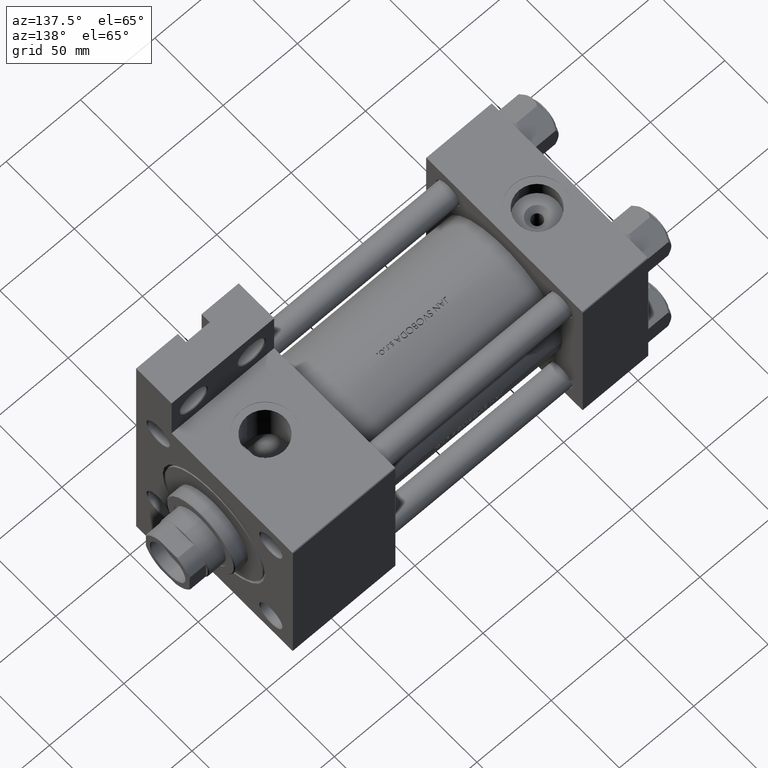
[diagram: clean part render]
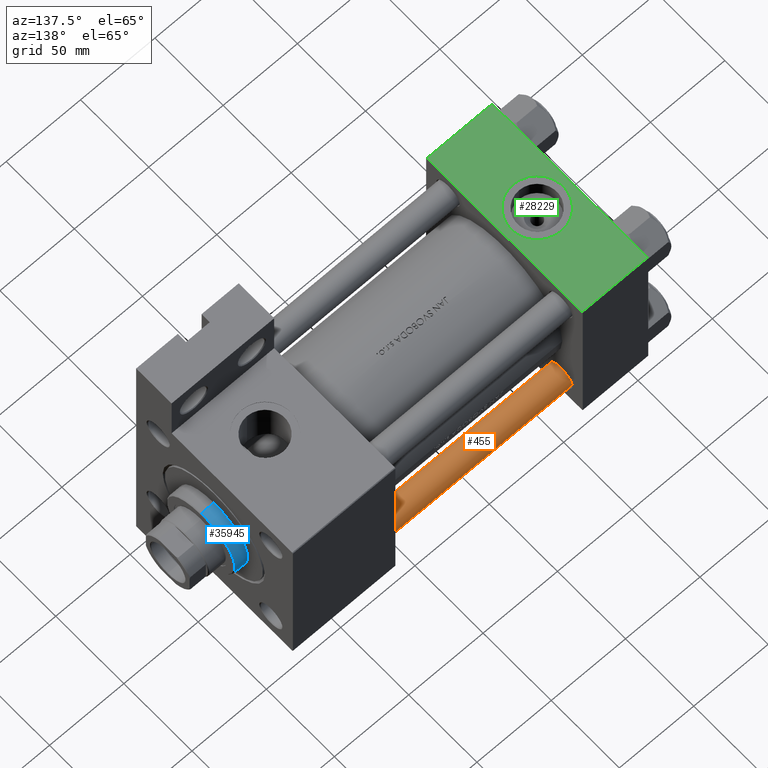
[diagram: same view with three faces highlighted in distinct colors, each labeled with its STEP entity id]
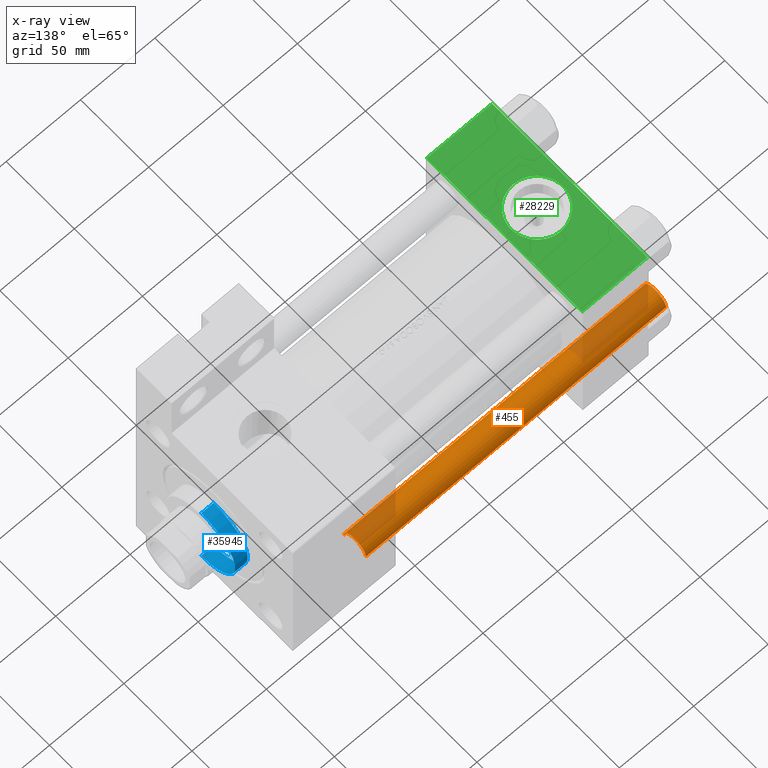
[diagram: x-ray of the same camera — body ghosted, the three highlighted faces saturated]
A machine part, auxiliary view with three faces highlighted in distinct colors.
The next image is the same camera in x-ray (body ghosted, the three faces saturated) — at least one of them is partly hidden behind the body in this view.
Their STEP definitions:

[orange] entity #455 — the highlighted cylindrical surface (edge-blend (fillet) strip) has radius 8 mm, axis along (-1, -0, 0).
#159 = DIRECTION ( 'NONE',  ( -0.000000000000000000, -0.000000000000000000, -1.000000000000000000 ) ) ;
#213 = ORIENTED_EDGE ( 'NONE', *, *, #34274, .T. ) ;
#455 = ADVANCED_FACE ( 'NONE', ( #32954 ), #31440, .T. ) ;
#857 = CARTESIAN_POINT ( 'NONE',  ( -8.000000000000000000, 0.000000000000000000, 202.5000000000000853 ) ) ;
#4289 = LINE ( 'NONE', #15008, #46283 ) ;
#4367 = ORIENTED_EDGE ( 'NONE', *, *, #44449, .F. ) ;
#7270 = VERTEX_POINT ( 'NONE', #37414 ) ;
#9268 = VERTEX_POINT ( 'NONE', #36447 ) ;
#9294 = DIRECTION ( 'NONE',  ( -0.000000000000000000, -0.000000000000000000, -1.000000000000000000 ) ) ;
#11777 = CIRCLE ( 'NONE', #41316, 8.000000000000000000 ) ;
#11901 = DIRECTION ( 'NONE',  ( 1.000000000000000000, 0.000000000000000000, 0.000000000000000000 ) ) ;
#14906 = DIRECTION ( 'NONE',  ( 1.000000000000000000, 0.000000000000000000, 0.000000000000000000 ) ) ;
#14978 = EDGE_LOOP ( 'NONE', ( #27745, #46774, #213, #4367 ) ) ;
#15008 = CARTESIAN_POINT ( 'NONE',  ( -8.000000000000000000, 0.000000000000000000, 203.0000000000000000 ) ) ;
#19849 = VECTOR ( 'NONE', #43888, 1000.000000000000000 ) ;
#22202 = CARTESIAN_POINT ( 'NONE',  ( 0.000000000000000000, 0.000000000000000000, 0.5000000000001947331 ) ) ;
#25612 = DIRECTION ( 'NONE',  ( -0.000000000000000000, -0.000000000000000000, 1.000000000000000000 ) ) ;
#27745 = ORIENTED_EDGE ( 'NONE', *, *, #34577, .T. ) ;
#31440 = CYLINDRICAL_SURFACE ( 'NONE', #39682, 8.000000000000000000 ) ;
#32954 = FACE_OUTER_BOUND ( 'NONE', #14978, .T. ) ;
#33545 = AXIS2_PLACEMENT_3D ( 'NONE', #22202, #25612, #14906 ) ;
#34060 = CARTESIAN_POINT ( 'NONE',  ( 0.000000000000000000, 0.000000000000000000, 202.5000000000000853 ) ) ;
#34274 = EDGE_CURVE ( 'NONE', #9268, #7270, #46740, .T. ) ;
#34296 = DIRECTION ( 'NONE',  ( 0.000000000000000000, 0.000000000000000000, -1.000000000000000000 ) ) ;
#34577 = EDGE_CURVE ( 'NONE', #42768, #36160, #11777, .T. ) ;
#36160 = VERTEX_POINT ( 'NONE', #40764 ) ;
#36447 = CARTESIAN_POINT ( 'NONE',  ( 8.000000000000000000, 9.797174393178823685E-16, 0.5000000000001947331 ) ) ;
#37414 = CARTESIAN_POINT ( 'NONE',  ( -8.000000000000000000, 0.000000000000000000, 0.5000000000001947331 ) ) ;
#39682 = AXIS2_PLACEMENT_3D ( 'NONE', #43564, #9294, #42612 ) ;
#40764 = CARTESIAN_POINT ( 'NONE',  ( 8.000000000000000000, 9.797174393178823685E-16, 202.5000000000000853 ) ) ;
#41316 = AXIS2_PLACEMENT_3D ( 'NONE', #34060, #34296, #11901 ) ;
#42612 = DIRECTION ( 'NONE',  ( -1.000000000000000000, 0.000000000000000000, 0.000000000000000000 ) ) ;
#42768 = VERTEX_POINT ( 'NONE', #857 ) ;
#43564 = CARTESIAN_POINT ( 'NONE',  ( 0.000000000000000000, 0.000000000000000000, 203.0000000000000000 ) ) ;
#43888 = DIRECTION ( 'NONE',  ( -0.000000000000000000, -0.000000000000000000, -1.000000000000000000 ) ) ;
#43889 = EDGE_CURVE ( 'NONE', #36160, #9268, #44367, .T. ) ;
#44367 = LINE ( 'NONE', #44606, #19849 ) ;
#44449 = EDGE_CURVE ( 'NONE', #42768, #7270, #4289, .T. ) ;
#44606 = CARTESIAN_POINT ( 'NONE',  ( 8.000000000000000000, 9.797174393178823685E-16, 203.0000000000000000 ) ) ;
#46283 = VECTOR ( 'NONE', #159, 1000.000000000000000 ) ;
#46740 = CIRCLE ( 'NONE', #33545, 8.000000000000000000 ) ;
#46774 = ORIENTED_EDGE ( 'NONE', *, *, #43889, .T. ) ;

[blue] entity #35945 — the highlighted cylindrical surface (partial cylindrical patch) has radius 25 mm, axis along (-1, 0, 0).
#3416 = CARTESIAN_POINT ( 'NONE',  ( -25.00000000000000000, 0.000000000000000000, 28.69999999999999929 ) ) ;
#6195 = LINE ( 'NONE', #13253, #25927 ) ;
#6203 = ORIENTED_EDGE ( 'NONE', *, *, #24748, .T. ) ;
#6346 = DIRECTION ( 'NONE',  ( -0.000000000000000000, -0.000000000000000000, -1.000000000000000000 ) ) ;
#7064 = CARTESIAN_POINT ( 'NONE',  ( -25.00000000000000000, 0.000000000000000000, 37.69999999999999574 ) ) ;
#7976 = CIRCLE ( 'NONE', #35192, 25.00000000000000000 ) ;
#9850 = CARTESIAN_POINT ( 'NONE',  ( -25.00000000000000000, 0.000000000000000000, 37.19999999999999574 ) ) ;
#10985 = DIRECTION ( 'NONE',  ( 1.000000000000000000, 0.000000000000000000, 0.000000000000000000 ) ) ;
#12570 = DIRECTION ( 'NONE',  ( -1.000000000000000000, 0.000000000000000000, 0.000000000000000000 ) ) ;
#13253 = CARTESIAN_POINT ( 'NONE',  ( 25.00000000000000000, 3.061616997868383043E-15, 37.69999999999999574 ) ) ;
#14924 = CIRCLE ( 'NONE', #37463, 25.00000000000000000 ) ;
#16236 = CARTESIAN_POINT ( 'NONE',  ( 0.000000000000000000, 0.000000000000000000, 37.69999999999999574 ) ) ;
#19541 = VECTOR ( 'NONE', #6346, 1000.000000000000000 ) ;
#19880 = CYLINDRICAL_SURFACE ( 'NONE', #25029, 25.00000000000000000 ) ;
#20360 = DIRECTION ( 'NONE',  ( -0.000000000000000000, -0.000000000000000000, -1.000000000000000000 ) ) ;
#23415 = VERTEX_POINT ( 'NONE', #9850 ) ;
#24748 = EDGE_CURVE ( 'NONE', #24992, #35015, #7976, .T. ) ;
#24992 = VERTEX_POINT ( 'NONE', #3416 ) ;
#25029 = AXIS2_PLACEMENT_3D ( 'NONE', #16236, #20360, #12570 ) ;
#25507 = DIRECTION ( 'NONE',  ( 1.000000000000000000, 0.000000000000000000, 0.000000000000000000 ) ) ;
#25927 = VECTOR ( 'NONE', #36352, 1000.000000000000000 ) ;
#28688 = CARTESIAN_POINT ( 'NONE',  ( 0.000000000000000000, 0.000000000000000000, 37.19999999999999574 ) ) ;
#29042 = CARTESIAN_POINT ( 'NONE',  ( 25.00000000000000000, 3.061616997868383043E-15, 28.69999999999999929 ) ) ;
#29491 = DIRECTION ( 'NONE',  ( 0.000000000000000000, 0.000000000000000000, 1.000000000000000000 ) ) ;
#32901 = CARTESIAN_POINT ( 'NONE',  ( 0.000000000000000000, 0.000000000000000000, 28.69999999999999929 ) ) ;
#34521 = EDGE_CURVE ( 'NONE', #23415, #24992, #40639, .T. ) ;
#34729 = FACE_OUTER_BOUND ( 'NONE', #38550, .T. ) ;
#35015 = VERTEX_POINT ( 'NONE', #29042 ) ;
#35192 = AXIS2_PLACEMENT_3D ( 'NONE', #32901, #29491, #10985 ) ;
#35565 = EDGE_CURVE ( 'NONE', #36646, #23415, #14924, .T. ) ;
#35945 = ADVANCED_FACE ( 'NONE', ( #34729 ), #19880, .T. ) ;
#36066 = ORIENTED_EDGE ( 'NONE', *, *, #39244, .F. ) ;
#36352 = DIRECTION ( 'NONE',  ( -0.000000000000000000, -0.000000000000000000, -1.000000000000000000 ) ) ;
#36455 = DIRECTION ( 'NONE',  ( 0.000000000000000000, 0.000000000000000000, -1.000000000000000000 ) ) ;
#36646 = VERTEX_POINT ( 'NONE', #37181 ) ;
#37181 = CARTESIAN_POINT ( 'NONE',  ( 25.00000000000000000, 3.061616997868383043E-15, 37.19999999999999574 ) ) ;
#37463 = AXIS2_PLACEMENT_3D ( 'NONE', #28688, #36455, #25507 ) ;
#38550 = EDGE_LOOP ( 'NONE', ( #36066, #46871, #41799, #6203 ) ) ;
#39244 = EDGE_CURVE ( 'NONE', #36646, #35015, #6195, .T. ) ;
#40639 = LINE ( 'NONE', #7064, #19541 ) ;
#41799 = ORIENTED_EDGE ( 'NONE', *, *, #34521, .T. ) ;
#46871 = ORIENTED_EDGE ( 'NONE', *, *, #35565, .T. ) ;

[green] entity #28229 — the highlighted planar face has unit normal (0, 0, -1).
#2941 = CARTESIAN_POINT ( 'NONE',  ( 44.00000000000000000, -57.50000000000000711, 57.49999999999999289 ) ) ;
#2973 = LINE ( 'NONE', #25825, #5445 ) ;
#3662 = PLANE ( 'NONE',  #5757 ) ;
#3708 = EDGE_CURVE ( 'NONE', #26841, #24165, #6710, .T. ) ;
#4802 = VERTEX_POINT ( 'NONE', #37921 ) ;
#5445 = VECTOR ( 'NONE', #19018, 1000.000000000000000 ) ;
#5757 = AXIS2_PLACEMENT_3D ( 'NONE', #2941, #47690, #10709 ) ;
#6710 = CIRCLE ( 'NONE', #38552, 17.50000000000000000 ) ;
#9097 = DIRECTION ( 'NONE',  ( 1.000000000000000000, 0.000000000000000000, 0.000000000000000000 ) ) ;
#10219 = VECTOR ( 'NONE', #17966, 1000.000000000000000 ) ;
#10709 = DIRECTION ( 'NONE',  ( 0.000000000000000000, -0.000000000000000000, 1.000000000000000000 ) ) ;
#11976 = ORIENTED_EDGE ( 'NONE', *, *, #3708, .F. ) ;
#12991 = CARTESIAN_POINT ( 'NONE',  ( 44.00000000000000000, -57.50000000000000711, -57.00000000000000711 ) ) ;
#13435 = ORIENTED_EDGE ( 'NONE', *, *, #34762, .T. ) ;
#13793 = VERTEX_POINT ( 'NONE', #41294 ) ;
#13832 = LINE ( 'NONE', #35974, #10219 ) ;
#15721 = CARTESIAN_POINT ( 'NONE',  ( 0.000000000000000000, -57.50000000000000711, 57.00000000000000711 ) ) ;
#15947 = VERTEX_POINT ( 'NONE', #19759 ) ;
#17966 = DIRECTION ( 'NONE',  ( -1.000000000000000000, 0.000000000000000000, 0.000000000000000000 ) ) ;
#18200 = VECTOR ( 'NONE', #26581, 1000.000000000000000 ) ;
#19018 = DIRECTION ( 'NONE',  ( 0.000000000000000000, 0.000000000000000000, -1.000000000000000000 ) ) ;
#19686 = EDGE_CURVE ( 'NONE', #15947, #13793, #2973, .T. ) ;
#19755 = LINE ( 'NONE', #34595, #18200 ) ;
#19759 = CARTESIAN_POINT ( 'NONE',  ( 44.00000000000000000, -57.50000000000000711, 57.00000000000000711 ) ) ;
#20315 = DIRECTION ( 'NONE',  ( 0.000000000000000000, 0.000000000000000000, -1.000000000000000000 ) ) ;
#21317 = ORIENTED_EDGE ( 'NONE', *, *, #27934, .T. ) ;
#22894 = DIRECTION ( 'NONE',  ( 0.000000000000000000, -1.000000000000000000, -8.673617379884036705E-17 ) ) ;
#24165 = VERTEX_POINT ( 'NONE', #35660 ) ;
#25350 = CARTESIAN_POINT ( 'NONE',  ( 22.00000000000000000, -57.50000000000000711, 0.000000000000000000 ) ) ;
#25825 = CARTESIAN_POINT ( 'NONE',  ( 44.00000000000000000, -57.50000000000000711, 57.49999999999999289 ) ) ;
#26581 = DIRECTION ( 'NONE',  ( 0.000000000000000000, 0.000000000000000000, -1.000000000000000000 ) ) ;
#26841 = VERTEX_POINT ( 'NONE', #42560 ) ;
#27934 = EDGE_CURVE ( 'NONE', #44571, #4802, #19755, .T. ) ;
#28229 = ADVANCED_FACE ( 'NONE', ( #32862, #36275 ), #3662, .F. ) ;
#31426 = VECTOR ( 'NONE', #9097, 1000.000000000000000 ) ;
#31773 = ORIENTED_EDGE ( 'NONE', *, *, #40937, .T. ) ;
#32862 = FACE_BOUND ( 'NONE', #35055, .T. ) ;
#33013 = EDGE_LOOP ( 'NONE', ( #21317, #31773, #44550, #13435 ) ) ;
#34595 = CARTESIAN_POINT ( 'NONE',  ( 0.000000000000000000, -57.50000000000000711, 57.49999999999999289 ) ) ;
#34762 = EDGE_CURVE ( 'NONE', #15947, #44571, #13832, .T. ) ;
#34919 = DIRECTION ( 'NONE',  ( 0.000000000000000000, -1.000000000000000000, -8.673617379884036705E-17 ) ) ;
#35055 = EDGE_LOOP ( 'NONE', ( #36042, #11976 ) ) ;
#35660 = CARTESIAN_POINT ( 'NONE',  ( 22.00000000000000000, -57.50000000000000711, -17.50000000000000000 ) ) ;
#35974 = CARTESIAN_POINT ( 'NONE',  ( 44.00000000000000000, -57.50000000000000711, 57.00000000000000711 ) ) ;
#36042 = ORIENTED_EDGE ( 'NONE', *, *, #42856, .F. ) ;
#36275 = FACE_OUTER_BOUND ( 'NONE', #33013, .T. ) ;
#36910 = AXIS2_PLACEMENT_3D ( 'NONE', #25350, #34919, #20315 ) ;
#37921 = CARTESIAN_POINT ( 'NONE',  ( 0.000000000000000000, -57.50000000000000711, -57.00000000000000711 ) ) ;
#38449 = DIRECTION ( 'NONE',  ( 0.000000000000000000, 0.000000000000000000, -1.000000000000000000 ) ) ;
#38552 = AXIS2_PLACEMENT_3D ( 'NONE', #42084, #22894, #38449 ) ;
#39258 = LINE ( 'NONE', #12991, #31426 ) ;
#40937 = EDGE_CURVE ( 'NONE', #4802, #13793, #39258, .T. ) ;
#41294 = CARTESIAN_POINT ( 'NONE',  ( 44.00000000000000000, -57.50000000000000711, -57.00000000000000711 ) ) ;
#42084 = CARTESIAN_POINT ( 'NONE',  ( 22.00000000000000000, -57.50000000000000711, 0.000000000000000000 ) ) ;
#42560 = CARTESIAN_POINT ( 'NONE',  ( 22.00000000000000355, -57.50000000000000711, 17.50000000000000000 ) ) ;
#42856 = EDGE_CURVE ( 'NONE', #24165, #26841, #45438, .T. ) ;
#44550 = ORIENTED_EDGE ( 'NONE', *, *, #19686, .F. ) ;
#44571 = VERTEX_POINT ( 'NONE', #15721 ) ;
#45438 = CIRCLE ( 'NONE', #36910, 17.50000000000000000 ) ;
#47690 = DIRECTION ( 'NONE',  ( -0.000000000000000000, 1.000000000000000000, 0.000000000000000000 ) ) ;